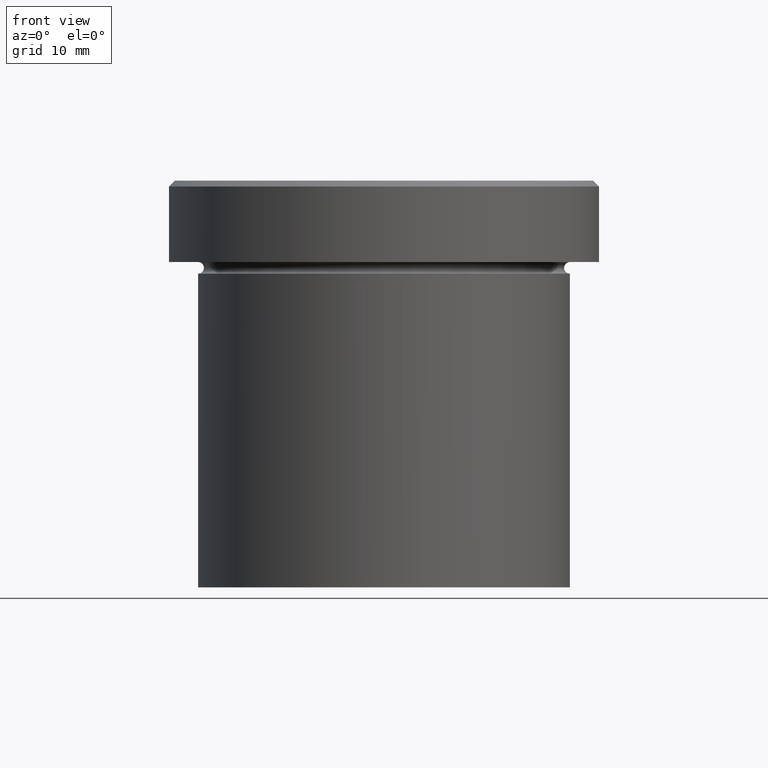
[diagram: clean part render]
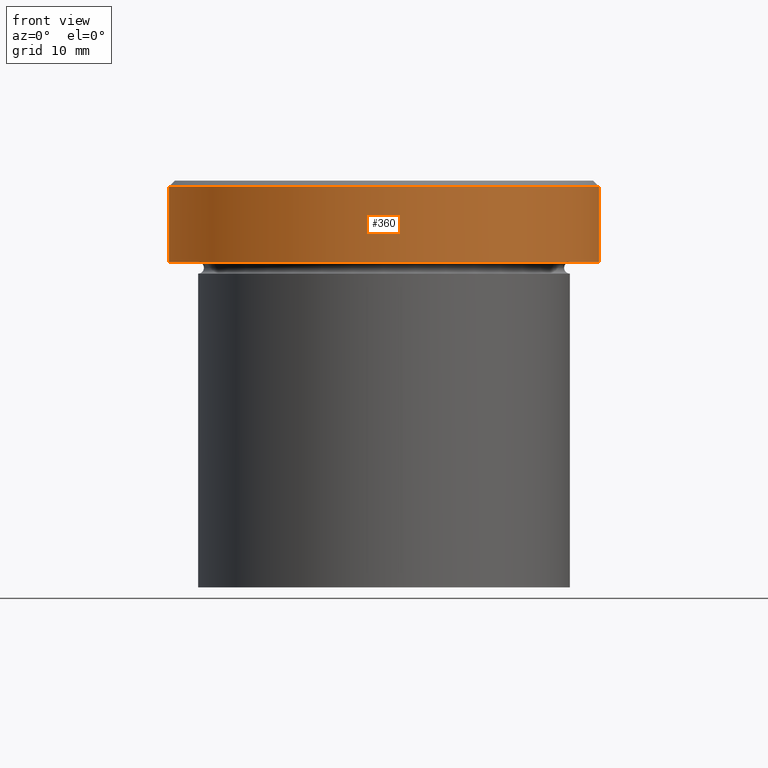
[diagram: same view with one face highlighted and labeled with its STEP entity id]
A machine part, front view. The second image highlights one B-rep face of the part: STEP entity #360.
In plain terms, the highlighted cylindrical surface (partial cylindrical patch) has radius 18.5 mm, axis along (-0, -0, 1).
Its self-contained STEP definition (entity closure, byte-faithful):
#1 = DIRECTION ( 'NONE',  ( 1.000000000000000000, 0.000000000000000000, 0.000000000000000000 ) ) ;
#27 = CARTESIAN_POINT ( 'NONE',  ( 0.000000000000000000, 0.000000000000000000, -6.999999999999999112 ) ) ;
#57 = LINE ( 'NONE', #368, #141 ) ;
#66 = CYLINDRICAL_SURFACE ( 'NONE', #163, 18.50000000000000000 ) ;
#82 = ORIENTED_EDGE ( 'NONE', *, *, #201, .F. ) ;
#100 = CARTESIAN_POINT ( 'NONE',  ( -18.50000000000000000, 2.265596578422603396E-15, -0.4999999999999936162 ) ) ;
#141 = VECTOR ( 'NONE', #338, 1000.000000000000000 ) ;
#156 = EDGE_LOOP ( 'NONE', ( #82, #260, #202, #181 ) ) ;
#159 = EDGE_CURVE ( 'NONE', #374, #276, #235, .T. ) ;
#163 = AXIS2_PLACEMENT_3D ( 'NONE', #192, #225, #347 ) ;
#170 = VERTEX_POINT ( 'NONE', #209 ) ;
#181 = ORIENTED_EDGE ( 'NONE', *, *, #255, .T. ) ;
#183 = AXIS2_PLACEMENT_3D ( 'NONE', #27, #319, #1 ) ;
#186 = CARTESIAN_POINT ( 'NONE',  ( 18.50000000000000000, 0.000000000000000000, -6.999999999999999112 ) ) ;
#192 = CARTESIAN_POINT ( 'NONE',  ( 0.000000000000000000, 0.000000000000000000, 0.000000000000000000 ) ) ;
#201 = EDGE_CURVE ( 'NONE', #170, #295, #57, .T. ) ;
#202 = ORIENTED_EDGE ( 'NONE', *, *, #159, .T. ) ;
#203 = AXIS2_PLACEMENT_3D ( 'NONE', #227, #219, #280 ) ;
#209 = CARTESIAN_POINT ( 'NONE',  ( -18.50000000000000000, 2.265596578422603396E-15, -6.999999999999999112 ) ) ;
#219 = DIRECTION ( 'NONE',  ( 0.000000000000000000, 0.000000000000000000, -1.000000000000000000 ) ) ;
#225 = DIRECTION ( 'NONE',  ( -0.000000000000000000, -0.000000000000000000, 1.000000000000000000 ) ) ;
#227 = CARTESIAN_POINT ( 'NONE',  ( 0.000000000000000000, 0.000000000000000000, -0.4999999999999936162 ) ) ;
#233 = CIRCLE ( 'NONE', #183, 18.50000000000000000 ) ;
#235 = LINE ( 'NONE', #373, #264 ) ;
#255 = EDGE_CURVE ( 'NONE', #276, #295, #328, .T. ) ;
#260 = ORIENTED_EDGE ( 'NONE', *, *, #382, .T. ) ;
#264 = VECTOR ( 'NONE', #345, 1000.000000000000000 ) ;
#276 = VERTEX_POINT ( 'NONE', #314 ) ;
#280 = DIRECTION ( 'NONE',  ( 1.000000000000000000, 0.000000000000000000, 0.000000000000000000 ) ) ;
#295 = VERTEX_POINT ( 'NONE', #100 ) ;
#314 = CARTESIAN_POINT ( 'NONE',  ( 18.50000000000000000, 0.000000000000000000, -0.4999999999999936162 ) ) ;
#319 = DIRECTION ( 'NONE',  ( -0.000000000000000000, -0.000000000000000000, 1.000000000000000000 ) ) ;
#328 = CIRCLE ( 'NONE', #203, 18.50000000000000000 ) ;
#338 = DIRECTION ( 'NONE',  ( -0.000000000000000000, -0.000000000000000000, 1.000000000000000000 ) ) ;
#345 = DIRECTION ( 'NONE',  ( -0.000000000000000000, -0.000000000000000000, 1.000000000000000000 ) ) ;
#347 = DIRECTION ( 'NONE',  ( 1.000000000000000000, 0.000000000000000000, 0.000000000000000000 ) ) ;
#360 = ADVANCED_FACE ( 'NONE', ( #406 ), #66, .T. ) ;
#368 = CARTESIAN_POINT ( 'NONE',  ( -18.50000000000000000, 2.265596578422603396E-15, 0.000000000000000000 ) ) ;
#373 = CARTESIAN_POINT ( 'NONE',  ( 18.50000000000000000, 0.000000000000000000, 0.000000000000000000 ) ) ;
#374 = VERTEX_POINT ( 'NONE', #186 ) ;
#382 = EDGE_CURVE ( 'NONE', #170, #374, #233, .T. ) ;
#406 = FACE_OUTER_BOUND ( 'NONE', #156, .T. ) ;